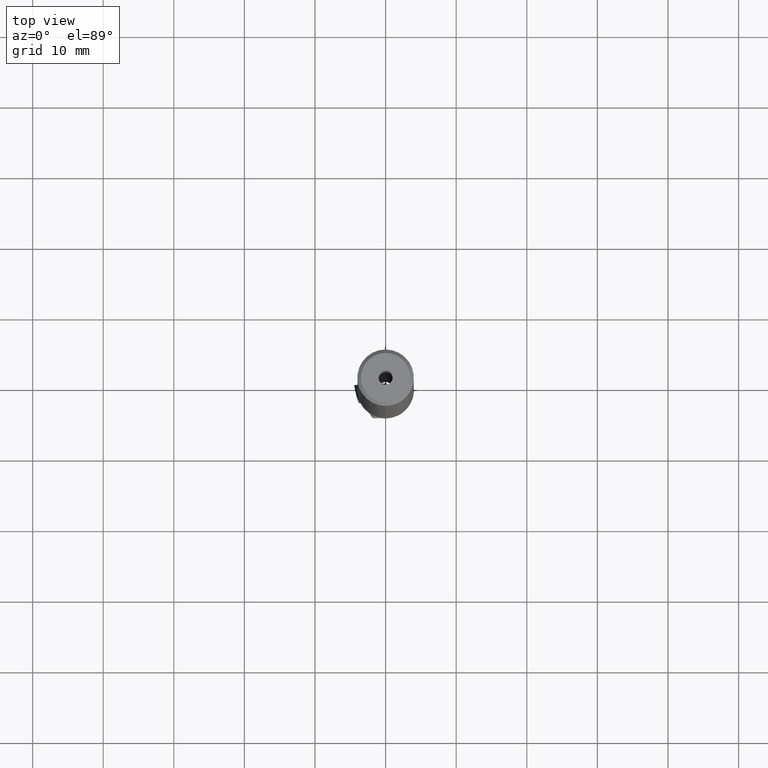
[diagram: clean part render]
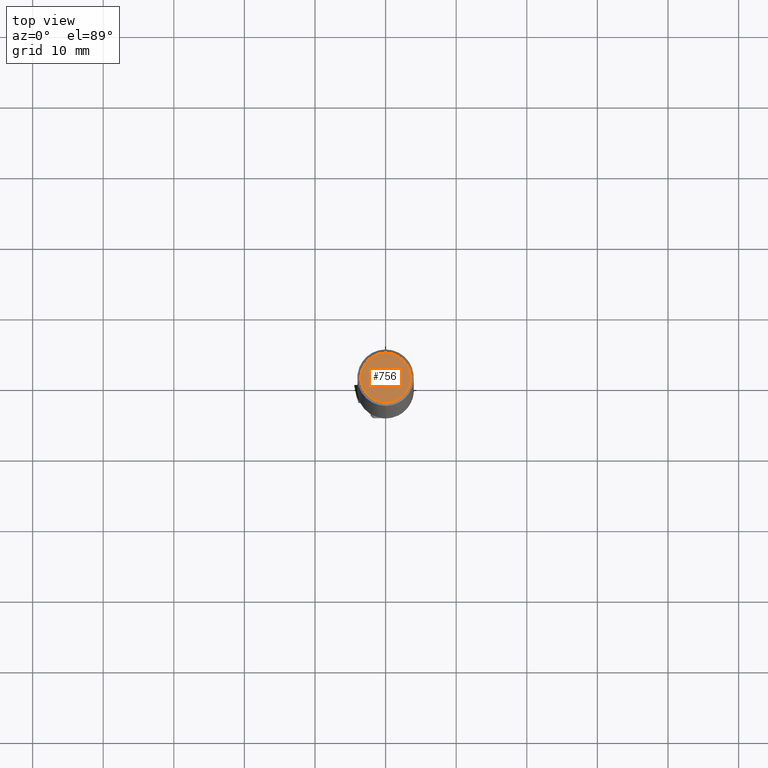
[diagram: same view with one face highlighted and labeled with its STEP entity id]
A machine part, top view. The second image highlights one B-rep face of the part: STEP entity #756.
In plain terms, the highlighted planar face has unit normal (0, 0, 1).
Its self-contained STEP definition (entity closure, byte-faithful):
#720=VERTEX_POINT('NONE',#1596);
#756=ADVANCED_FACE('NONE',(#1637,#1638),#1639,.T.);
#774=EDGE_CURVE('NONE',#1182,#856,#1661,.T.);
#796=VERTEX_POINT('NONE',#1685);
#856=VERTEX_POINT('NONE',#1752);
#1000=EDGE_CURVE('NONE',#720,#796,#1909,.T.);
#1182=VERTEX_POINT('NONE',#2104);
#1240=EDGE_CURVE('NONE',#856,#1182,#2169,.F.);
#1246=EDGE_CURVE('NONE',#796,#720,#2176,.F.);
#1596=CARTESIAN_POINT('',(0.0,3.50000000000002,87.0));
#1637=FACE_OUTER_BOUND('',#3281,.T.);
#1638=FACE_BOUND('',#3282,.T.);
#1639=PLANE('',#3283);
#1661=CIRCLE('',#3312,0.99999999999999);
#1685=CARTESIAN_POINT('',(4.59242549680258E-016,-3.50000000000002,87.0));
#1752=CARTESIAN_POINT('',(0.0,0.99999999999999,87.0));
#1909=CIRCLE('',#3683,3.50000000000002);
#2104=CARTESIAN_POINT('',(1.22464679914734E-016,-0.99999999999999,87.0));
#2169=CIRCLE('',#5504,0.99999999999999);
#2176=CIRCLE('',#5514,3.50000000000002);
#3281=EDGE_LOOP('',(#6003,#6004));
#3282=EDGE_LOOP('',(#6005,#6006));
#3283=AXIS2_PLACEMENT_3D('',#6007,#6008,#6009);
#3312=AXIS2_PLACEMENT_3D('',#6045,#6046,#6047);
#3683=AXIS2_PLACEMENT_3D('',#6352,#6353,#6354);
#5504=AXIS2_PLACEMENT_3D('',#6634,#6635,#6636);
#5514=AXIS2_PLACEMENT_3D('',#6647,#6648,#6649);
#6003=ORIENTED_EDGE('',*,*,#1000,.T.);
#6004=ORIENTED_EDGE('',*,*,#1246,.T.);
#6005=ORIENTED_EDGE('',*,*,#1240,.T.);
#6006=ORIENTED_EDGE('',*,*,#774,.T.);
#6007=CARTESIAN_POINT('',(4.00000000000001,0.0,87.0));
#6008=DIRECTION('',(0.0,0.0,1.0));
#6009=DIRECTION('',(0.0,-1.0,0.0));
#6045=CARTESIAN_POINT('',(0.0,0.0,87.0));
#6046=DIRECTION('',(0.0,0.0,-1.0));
#6047=DIRECTION('',(0.0,1.0,0.0));
#6352=CARTESIAN_POINT('',(0.0,0.0,87.0));
#6353=DIRECTION('',(0.0,-0.0,1.0));
#6354=DIRECTION('',(0.0,1.0,0.0));
#6634=CARTESIAN_POINT('',(0.0,0.0,87.0));
#6635=DIRECTION('',(0.0,-0.0,1.0));
#6636=DIRECTION('',(0.0,1.0,0.0));
#6647=CARTESIAN_POINT('',(0.0,0.0,87.0));
#6648=DIRECTION('',(0.0,0.0,-1.0));
#6649=DIRECTION('',(0.0,1.0,0.0));